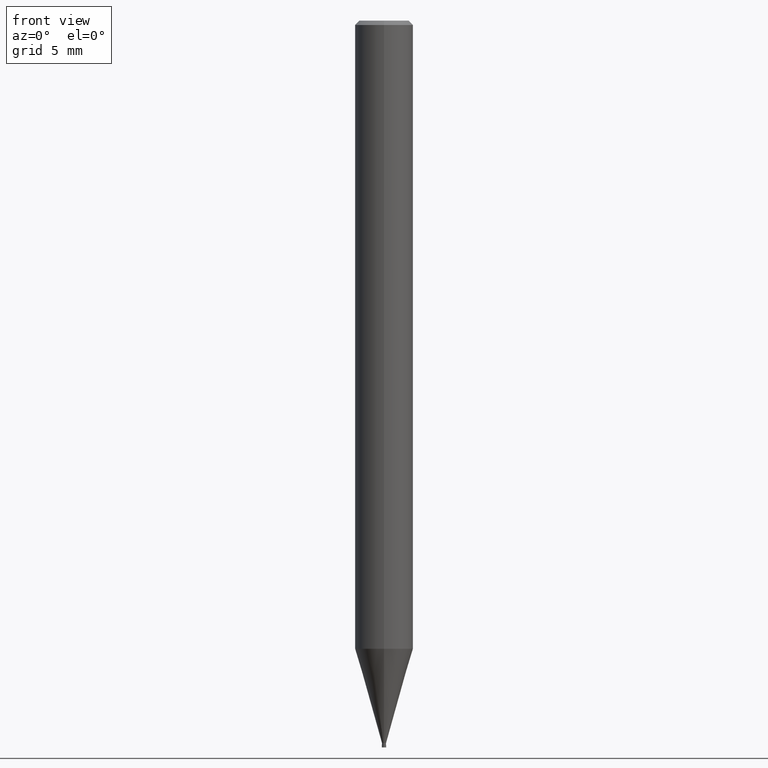
[diagram: clean part render]
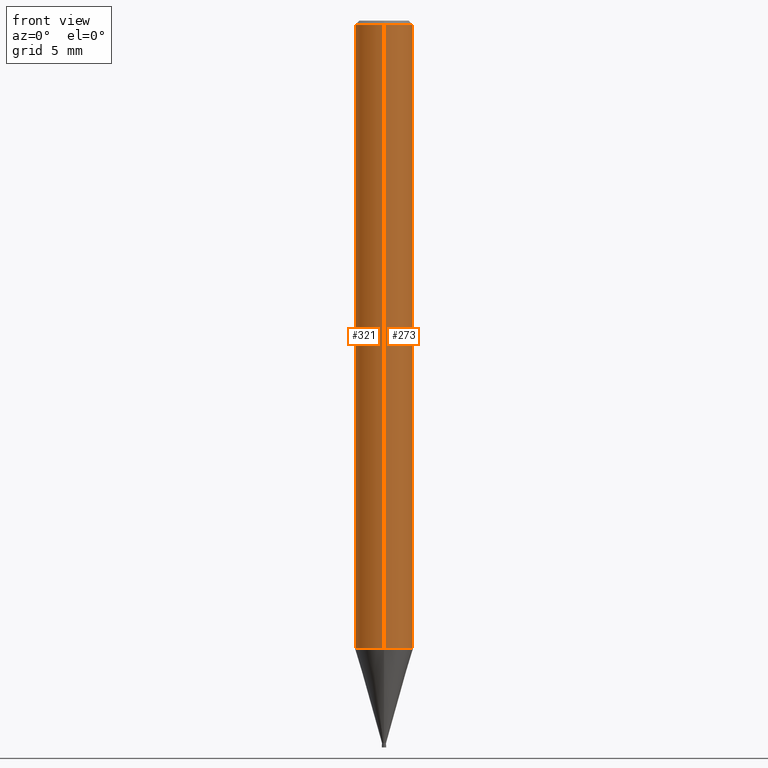
[diagram: same view with one multi-face feature highlighted, each face labeled with its STEP entity id]
A machine part, front view. The highlighted faces form ONE feature: a constant-radius fillet chain: 2 tangent blend faces with common blend radius 2 mm. The faces share edges in the B-rep.
Their STEP definitions:
[1] entity #321 (Cylinder):
#151=EDGE_CURVE('',#187,#323,#387,.T.);
#153=EDGE_CURVE('',#187,#235,#389,.T.);
#187=VERTEX_POINT('',#428);
#233=VERTEX_POINT('',#481);
#235=VERTEX_POINT('',#483);
#309=EDGE_CURVE('',#235,#233,#569,.T.);
#321=ADVANCED_FACE('',(#583),#584,.T.);
#323=VERTEX_POINT('',#586);
#353=EDGE_CURVE('',#233,#323,#618,.T.);
#387=CIRCLE('',#646,2.0);
#389=LINE('',#649,#650);
#428=CARTESIAN_POINT('',(2.44921270764475E-016,-2.0,-43.203));
#481=CARTESIAN_POINT('',(0.0,2.0,-0.289999999999999));
#483=CARTESIAN_POINT('',(2.44921270764475E-016,-2.0,-0.289999999999999));
#569=CIRCLE('',#877,2.0);
#583=FACE_OUTER_BOUND('',#892,.T.);
#584=CYLINDRICAL_SURFACE('',#893,2.0);
#586=CARTESIAN_POINT('',(0.0,2.0,-43.203));
#618=LINE('',#938,#939);
#646=AXIS2_PLACEMENT_3D('',#954,#955,#956);
#649=CARTESIAN_POINT('',(2.44921270764475E-016,-2.0,-21.7465));
#650=VECTOR('',#957,1.0);
#877=AXIS2_PLACEMENT_3D('',#1197,#1198,#1199);
#892=EDGE_LOOP('',(#1220,#1221,#1222,#1223));
#893=AXIS2_PLACEMENT_3D('',#1224,#1225,#1226);
#938=CARTESIAN_POINT('',(-2.44921270764475E-016,2.0,-21.7465));
#939=VECTOR('',#1263,1.0);
#954=CARTESIAN_POINT('',(0.0,0.0,-43.203));
#955=DIRECTION('',(0.0,0.0,-1.0));
#956=DIRECTION('',(0.0,1.0,0.0));
#957=DIRECTION('',(-0.0,-0.0,1.0));
#1197=CARTESIAN_POINT('',(0.0,0.0,-0.289999999999999));
#1198=DIRECTION('',(0.0,0.0,-1.0));
#1199=DIRECTION('',(0.0,1.0,0.0));
#1220=ORIENTED_EDGE('',*,*,#353,.T.);
#1221=ORIENTED_EDGE('',*,*,#151,.F.);
#1222=ORIENTED_EDGE('',*,*,#153,.T.);
#1223=ORIENTED_EDGE('',*,*,#309,.T.);
#1224=CARTESIAN_POINT('',(0.0,0.0,-21.7465));
#1225=DIRECTION('',(-0.0,-0.0,1.0));
#1226=DIRECTION('',(0.0,1.0,0.0));
#1263=DIRECTION('',(0.0,0.0,-1.0));
[2] entity #273 (Cylinder):
#153=EDGE_CURVE('',#187,#235,#389,.T.);
#187=VERTEX_POINT('',#428);
#195=EDGE_CURVE('',#323,#187,#436,.T.);
#233=VERTEX_POINT('',#481);
#235=VERTEX_POINT('',#483);
#273=ADVANCED_FACE('',(#526),#527,.T.);
#323=VERTEX_POINT('',#586);
#341=EDGE_CURVE('',#233,#235,#605,.T.);
#353=EDGE_CURVE('',#233,#323,#618,.T.);
#389=LINE('',#649,#650);
#428=CARTESIAN_POINT('',(2.44921270764475E-016,-2.0,-43.203));
#436=CIRCLE('',#711,2.0);
#481=CARTESIAN_POINT('',(0.0,2.0,-0.289999999999999));
#483=CARTESIAN_POINT('',(2.44921270764475E-016,-2.0,-0.289999999999999));
#526=FACE_OUTER_BOUND('',#825,.T.);
#527=CYLINDRICAL_SURFACE('',#826,2.0);
#586=CARTESIAN_POINT('',(0.0,2.0,-43.203));
#605=CIRCLE('',#920,2.0);
#618=LINE('',#938,#939);
#649=CARTESIAN_POINT('',(2.44921270764475E-016,-2.0,-21.7465));
#650=VECTOR('',#957,1.0);
#711=AXIS2_PLACEMENT_3D('',#1016,#1017,#1018);
#825=EDGE_LOOP('',(#1128,#1129,#1130,#1131));
#826=AXIS2_PLACEMENT_3D('',#1132,#1133,#1134);
#920=AXIS2_PLACEMENT_3D('',#1245,#1246,#1247);
#938=CARTESIAN_POINT('',(-2.44921270764475E-016,2.0,-21.7465));
#939=VECTOR('',#1263,1.0);
#957=DIRECTION('',(-0.0,-0.0,1.0));
#1016=CARTESIAN_POINT('',(0.0,0.0,-43.203));
#1017=DIRECTION('',(0.0,0.0,-1.0));
#1018=DIRECTION('',(0.0,1.0,0.0));
#1128=ORIENTED_EDGE('',*,*,#353,.F.);
#1129=ORIENTED_EDGE('',*,*,#341,.T.);
#1130=ORIENTED_EDGE('',*,*,#153,.F.);
#1131=ORIENTED_EDGE('',*,*,#195,.F.);
#1132=CARTESIAN_POINT('',(0.0,0.0,-21.7465));
#1133=DIRECTION('',(-0.0,-0.0,1.0));
#1134=DIRECTION('',(0.0,1.0,0.0));
#1245=CARTESIAN_POINT('',(0.0,0.0,-0.289999999999999));
#1246=DIRECTION('',(0.0,0.0,-1.0));
#1247=DIRECTION('',(0.0,1.0,0.0));
#1263=DIRECTION('',(0.0,0.0,-1.0));